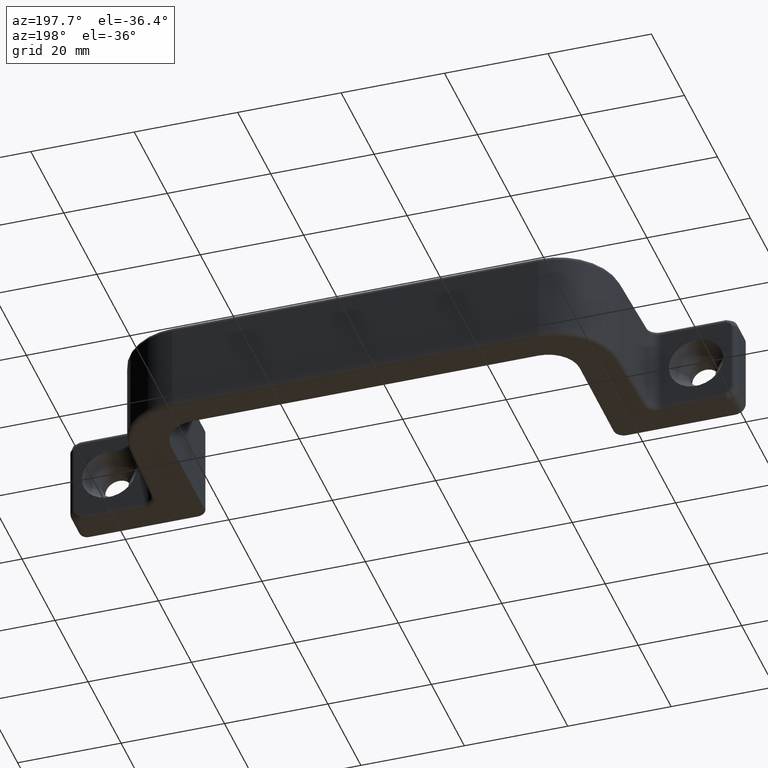
[diagram: clean part render]
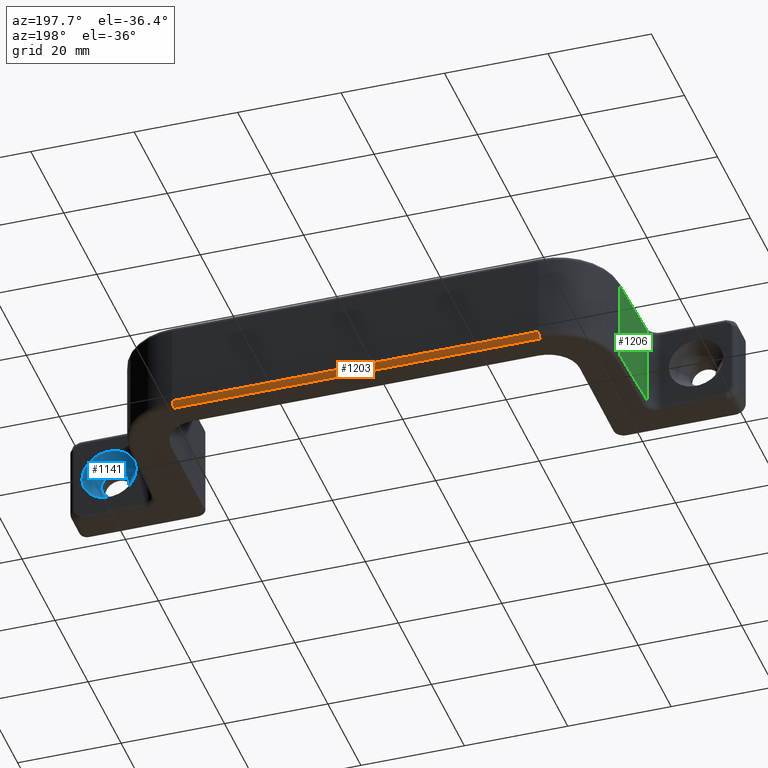
[diagram: same view with three faces highlighted in distinct colors, each labeled with its STEP entity id]
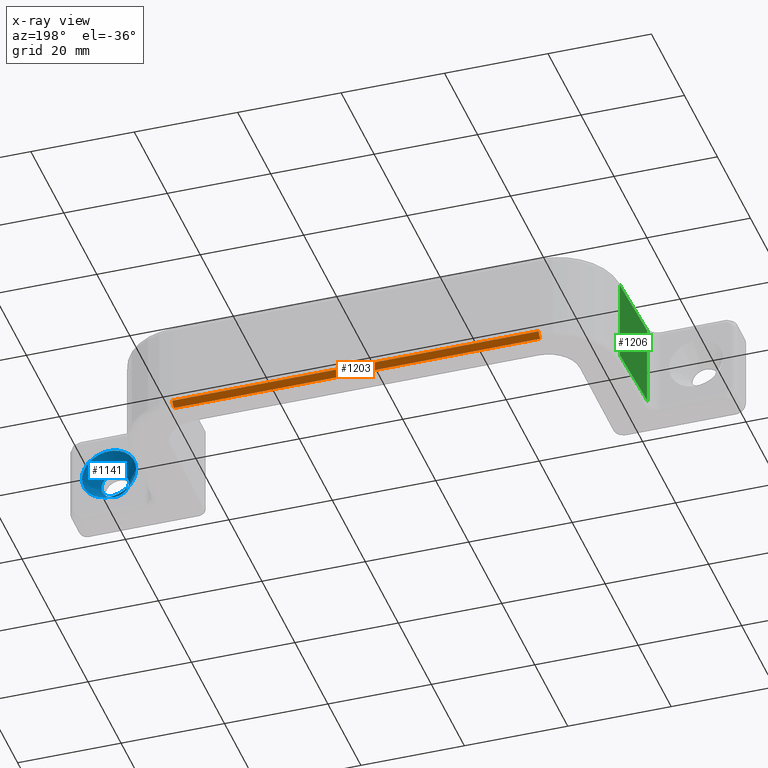
[diagram: x-ray of the same camera — body ghosted, the three highlighted faces saturated]
A machine part, auxiliary view with three faces highlighted in distinct colors.
The next image is the same camera in x-ray (body ghosted, the three faces saturated) — at least one of them is partly hidden behind the body in this view.
Their STEP definitions:

[orange] entity #1203 — the highlighted cylindrical surface (edge-blend (fillet) strip) has radius 1 mm, axis along (1, 0, 0).
#81=LINE('',#2037,#153);
#107=LINE('',#2187,#179);
#153=VECTOR('',#1627,70.8329855436006);
#179=VECTOR('',#1791,70.8329855436006);
#220=CYLINDRICAL_SURFACE('',#1381,1.);
#293=FACE_OUTER_BOUND('',#378,.T.);
#378=EDGE_LOOP('',(#1056,#1057,#1058,#1059));
#437=CIRCLE('',#1289,1.00000000000001);
#489=CIRCLE('',#1379,1.00000000000001);
#540=VERTEX_POINT('',#1983);
#541=VERTEX_POINT('',#1984);
#555=VERTEX_POINT('',#2035);
#592=VERTEX_POINT('',#2183);
#665=EDGE_CURVE('',#540,#541,#437,.T.);
#692=EDGE_CURVE('',#555,#541,#81,.T.);
#757=EDGE_CURVE('',#592,#555,#489,.T.);
#759=EDGE_CURVE('',#592,#540,#107,.T.);
#1056=ORIENTED_EDGE('',*,*,#692,.F.);
#1057=ORIENTED_EDGE('',*,*,#757,.F.);
#1058=ORIENTED_EDGE('',*,*,#759,.T.);
#1059=ORIENTED_EDGE('',*,*,#665,.T.);
#1203=ADVANCED_FACE('',(#293),#220,.T.);
#1289=AXIS2_PLACEMENT_3D('',#1985,#1565,#1566);
#1379=AXIS2_PLACEMENT_3D('',#2184,#1785,#1786);
#1381=AXIS2_PLACEMENT_3D('',#2186,#1789,#1790);
#1565=DIRECTION('center_axis',(-1.,0.,0.));
#1566=DIRECTION('ref_axis',(0.,1.,0.));
#1627=DIRECTION('',(1.,0.,0.));
#1785=DIRECTION('center_axis',(-1.,0.,0.));
#1786=DIRECTION('ref_axis',(0.,1.,0.));
#1789=DIRECTION('center_axis',(1.,0.,0.));
#1790=DIRECTION('ref_axis',(0.,0.707106781186549,-0.707106781186546));
#1791=DIRECTION('',(1.,0.,0.));
#1983=CARTESIAN_POINT('',(99.9164927718003,34.5,-8.));
#1984=CARTESIAN_POINT('',(99.9164927718003,33.5,-9.));
#1985=CARTESIAN_POINT('Origin',(99.9164927718003,33.5,-8.));
#2035=CARTESIAN_POINT('',(29.0835072281997,33.5,-9.));
#2037=CARTESIAN_POINT('',(81.8947924641146,33.5,-9.));
#2183=CARTESIAN_POINT('',(29.0835072281997,34.5,-8.));
#2184=CARTESIAN_POINT('Origin',(29.0835072281997,33.5,-8.));
#2186=CARTESIAN_POINT('Origin',(47.1052075358854,33.5,-8.));
#2187=CARTESIAN_POINT('',(47.1052075358854,34.5,-8.));

[blue] entity #1141 — the highlighted conical surface has half-angle 35 deg.
#19=CONICAL_SURFACE('',#1234,3.95,35.);
#22=FACE_BOUND('',#311,.T.);
#231=FACE_OUTER_BOUND('',#310,.T.);
#310=EDGE_LOOP('',(#794));
#311=EDGE_LOOP('',(#795));
#402=CIRCLE('',#1235,5.25);
#403=CIRCLE('',#1236,2.65);
#506=VERTEX_POINT('',#1860);
#507=VERTEX_POINT('',#1862);
#613=EDGE_CURVE('',#506,#506,#402,.T.);
#614=EDGE_CURVE('',#507,#507,#403,.T.);
#794=ORIENTED_EDGE('',*,*,#613,.T.);
#795=ORIENTED_EDGE('',*,*,#614,.T.);
#1141=ADVANCED_FACE('',(#231,#22),#19,.F.);
#1234=AXIS2_PLACEMENT_3D('',#1859,#1438,#1439);
#1235=AXIS2_PLACEMENT_3D('',#1861,#1440,#1441);
#1236=AXIS2_PLACEMENT_3D('',#1863,#1442,#1443);
#1438=DIRECTION('center_axis',(6.72862439166762E-17,1.,0.));
#1439=DIRECTION('ref_axis',(-1.,6.72862439166762E-17,0.));
#1440=DIRECTION('center_axis',(6.72862439166762E-17,1.,0.));
#1441=DIRECTION('ref_axis',(-1.,6.72862439166761E-17,0.));
#1442=DIRECTION('center_axis',(-6.72862439166762E-17,-1.,0.));
#1443=DIRECTION('ref_axis',(-1.,6.72862439166762E-17,0.));
#1859=CARTESIAN_POINT('Origin',(121.25,4.14340759123525,0.));
#1860=CARTESIAN_POINT('',(116.,6.,0.));
#1861=CARTESIAN_POINT('Origin',(121.25,6.,0.));
#1862=CARTESIAN_POINT('',(118.6,2.2868151824705,0.));
#1863=CARTESIAN_POINT('Origin',(121.25,2.2868151824705,0.));

[green] entity #1206 — the highlighted planar face has unit normal (-0.9994, 0.0349, 0).
#39=PLANE('',#1384);
#100=LINE('',#2124,#172);
#106=LINE('',#2181,#178);
#109=LINE('',#2191,#181);
#110=LINE('',#2193,#182);
#172=VECTOR('',#1734,14.9977291652174);
#178=VECTOR('',#1782,14.9977291652174);
#181=VECTOR('',#1797,16.);
#182=VECTOR('',#1800,16.);
#296=FACE_OUTER_BOUND('',#382,.T.);
#382=EDGE_LOOP('',(#1071,#1072,#1073,#1074));
#576=VERTEX_POINT('',#2114);
#578=VERTEX_POINT('',#2120);
#590=VERTEX_POINT('',#2175);
#591=VERTEX_POINT('',#2179);
#735=EDGE_CURVE('',#576,#578,#100,.T.);
#756=EDGE_CURVE('',#590,#591,#106,.T.);
#761=EDGE_CURVE('',#578,#590,#109,.T.);
#762=EDGE_CURVE('',#591,#576,#110,.T.);
#1071=ORIENTED_EDGE('',*,*,#756,.F.);
#1072=ORIENTED_EDGE('',*,*,#761,.F.);
#1073=ORIENTED_EDGE('',*,*,#735,.F.);
#1074=ORIENTED_EDGE('',*,*,#762,.F.);
#1206=ADVANCED_FACE('',(#296),#39,.T.);
#1384=AXIS2_PLACEMENT_3D('',#2192,#1798,#1799);
#1734=DIRECTION('',(-0.0348994967025011,-0.999390827019096,0.));
#1782=DIRECTION('',(0.0348994967025011,0.999390827019096,0.));
#1797=DIRECTION('',(0.,0.,-1.));
#1798=DIRECTION('center_axis',(-0.999390827019096,0.0348994967025011,0.));
#1799=DIRECTION('ref_axis',(-0.0348994967025011,-0.999390827019096,0.));
#1800=DIRECTION('',(0.,0.,1.));
#2114=CARTESIAN_POINT('',(17.0908173039706,22.91879396043,8.));
#2120=CARTESIAN_POINT('',(16.567404104424,7.930201006595,8.));
#2124=CARTESIAN_POINT('',(17.040995423762,21.4920819797476,8.));
#2175=CARTESIAN_POINT('',(16.567404104424,7.930201006595,-8.));
#2179=CARTESIAN_POINT('',(17.0908173039706,22.91879396043,-8.));
#2181=CARTESIAN_POINT('',(17.040995423762,21.4920819797476,-8.));
#2191=CARTESIAN_POINT('',(16.567404104424,7.930201006595,0.));
#2192=CARTESIAN_POINT('Origin',(17.0908173039706,22.91879396043,0.));
#2193=CARTESIAN_POINT('',(17.0908173039706,22.91879396043,0.));